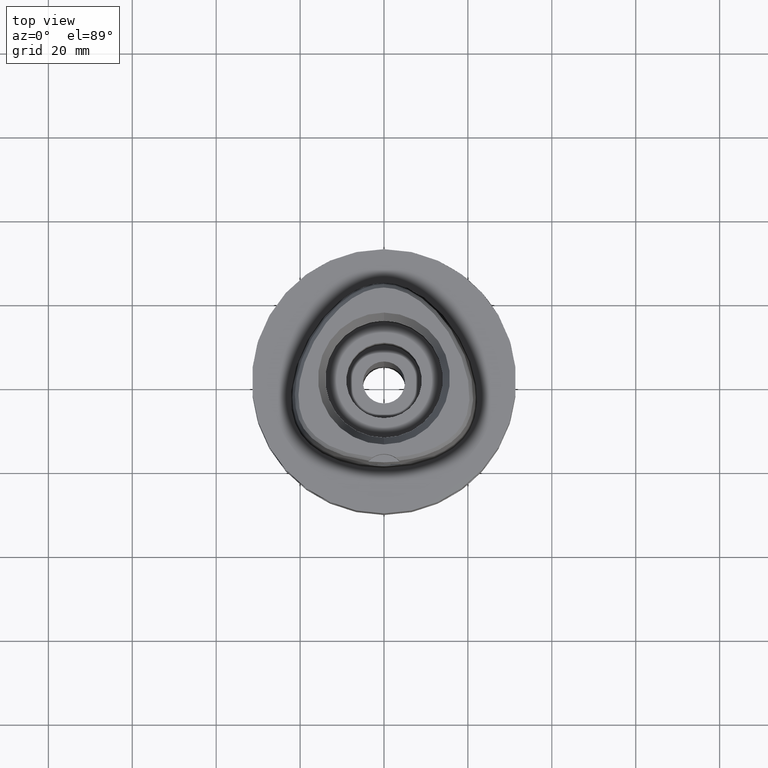
[diagram: clean part render]
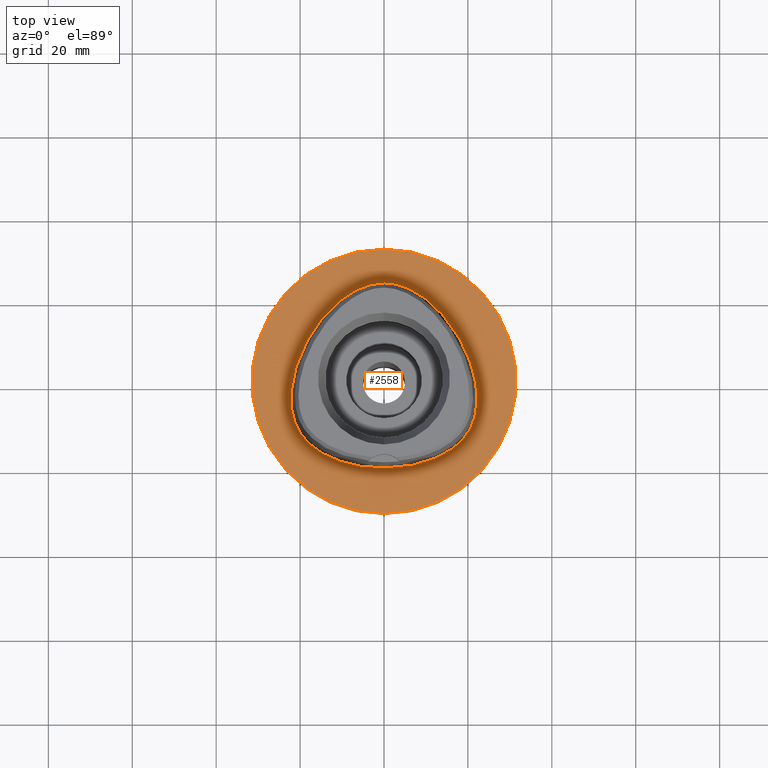
[diagram: same view with one face highlighted and labeled with its STEP entity id]
A machine part, top view. The second image highlights one B-rep face of the part: STEP entity #2558.
In plain terms, the highlighted planar face has unit normal (0, 0, -1).
Its self-contained STEP definition (entity closure, byte-faithful):
#286=CARTESIAN_POINT('',(0.E0,1.293227019900E-14,0.E0));
#287=DIRECTION('',(0.E0,0.E0,-1.E0));
#288=DIRECTION('',(0.E0,-1.E0,0.E0));
#289=AXIS2_PLACEMENT_3D('',#286,#287,#288);
#294=CARTESIAN_POINT('',(0.E0,1.293227019900E-14,0.E0));
#295=DIRECTION('',(0.E0,0.E0,-1.E0));
#296=DIRECTION('',(0.E0,1.E0,0.E0));
#297=AXIS2_PLACEMENT_3D('',#294,#295,#296);
#302=CARTESIAN_POINT('',(-8.195366136956E-12,-2.0675E1,5.699144859742E-14));
#303=CARTESIAN_POINT('',(9.424410730313E-1,-2.0675E1,5.699144859742E-14));
#304=CARTESIAN_POINT('',(2.793498385144E0,-2.060121279113E1,
-2.644982334311E-14));
#305=CARTESIAN_POINT('',(5.508317392498E0,-2.027760784305E1,0.E0));
#306=CARTESIAN_POINT('',(8.042283048290E0,-1.976535038161E1,0.E0));
#307=CARTESIAN_POINT('',(1.034769246011E1,-1.909901168002E1,0.E0));
#308=CARTESIAN_POINT('',(1.239690028726E1,-1.831440633134E1,0.E0));
#309=CARTESIAN_POINT('',(1.418724497299E1,-1.744418331143E1,0.E0));
#310=CARTESIAN_POINT('',(1.573252799017E1,-1.651362362014E1,0.E0));
#311=CARTESIAN_POINT('',(1.705345026612E1,-1.554124778281E1,0.E0));
#312=CARTESIAN_POINT('',(1.817409574332E1,-1.453882758759E1,0.E0));
#313=CARTESIAN_POINT('',(1.911939204581E1,-1.350918186793E1,0.E0));
#314=CARTESIAN_POINT('',(1.990164630943E1,-1.246448486181E1,0.E0));
#315=CARTESIAN_POINT('',(2.055241369892E1,-1.138152228921E1,0.E0));
#316=CARTESIAN_POINT('',(2.109859169268E1,-1.021515076491E1,0.E0));
#317=CARTESIAN_POINT('',(2.155059010529E1,-8.927115672096E0,0.E0));
#318=CARTESIAN_POINT('',(2.189661581262E1,-7.503943940441E0,0.E0));
#319=CARTESIAN_POINT('',(2.212243449064E1,-5.927939707532E0,0.E0));
#320=CARTESIAN_POINT('',(2.220771296201E1,-4.182993250552E0,0.E0));
#321=CARTESIAN_POINT('',(2.212727169809E1,-2.257530056409E0,0.E0));
#322=CARTESIAN_POINT('',(2.185268526932E1,-1.488562286611E-1,0.E0));
#323=CARTESIAN_POINT('',(2.135583121463E1,2.131060266597E0,0.E0));
#324=CARTESIAN_POINT('',(2.061498960730E1,4.548922353838E0,0.E0));
#325=CARTESIAN_POINT('',(1.962183629035E1,7.048070491889E0,0.E0));
#326=CARTESIAN_POINT('',(1.838960266974E1,9.548018977044E0,0.E0));
#327=CARTESIAN_POINT('',(1.695186415591E1,1.196227064422E1,0.E0));
#328=CARTESIAN_POINT('',(1.535543809526E1,1.421580229752E1,0.E0));
#329=CARTESIAN_POINT('',(1.366191099290E1,1.624115744859E1,0.E0));
#330=CARTESIAN_POINT('',(1.193262208639E1,1.799662913011E1,0.E0));
#331=CARTESIAN_POINT('',(1.021592161028E1,1.947049924403E1,0.E0));
#332=CARTESIAN_POINT('',(8.546574879406E0,2.067109792507E1,0.E0));
#333=CARTESIAN_POINT('',(6.944082352105E0,2.162048497503E1,0.E0));
#334=CARTESIAN_POINT('',(5.416515327443E0,2.234578935846E1,0.E0));
#335=CARTESIAN_POINT('',(3.964005430014E0,2.287416795835E1,0.E0));
#336=CARTESIAN_POINT('',(2.581016174533E0,2.322975955653E1,0.E0));
#337=CARTESIAN_POINT('',(1.261697128686E0,2.343214818692E1,
-2.511015696599E-14));
#338=CARTESIAN_POINT('',(4.146040462738E-1,2.347499999999E1,
5.410486873340E-14));
#339=CARTESIAN_POINT('',(4.711982846279E-11,2.347499999999E1,
5.410486873340E-14));
#344=CARTESIAN_POINT('',(4.711982846279E-11,2.347499999999E1,
5.410486873340E-14));
#345=CARTESIAN_POINT('',(-4.147333787676E-1,2.347499999999E1,
5.410486873340E-14));
#346=CARTESIAN_POINT('',(-1.262061304315E0,2.343212491620E1,
-2.511015696599E-14));
#347=CARTESIAN_POINT('',(-2.581769782500E0,2.322961198610E1,0.E0));
#348=CARTESIAN_POINT('',(-3.964859593146E0,2.287390761013E1,0.E0));
#349=CARTESIAN_POINT('',(-5.417671751090E0,2.234531743252E1,0.E0));
#350=CARTESIAN_POINT('',(-6.945651834071E0,2.161966722024E1,0.E0));
#351=CARTESIAN_POINT('',(-8.548724433836E0,2.066971262547E1,0.E0));
#352=CARTESIAN_POINT('',(-1.021859295896E1,1.946842051983E1,0.E0));
#353=CARTESIAN_POINT('',(-1.193583321534E1,1.799365402565E1,0.E0));
#354=CARTESIAN_POINT('',(-1.366549061428E1,1.623723928323E1,0.E0));
#355=CARTESIAN_POINT('',(-1.535921975264E1,1.421090681840E1,0.E0));
#356=CARTESIAN_POINT('',(-1.695549054293E1,1.195672029967E1,0.E0));
#357=CARTESIAN_POINT('',(-1.839312514584E1,9.541556583966E0,0.E0));
#358=CARTESIAN_POINT('',(-1.962477443965E1,7.041445423757E0,0.E0));
#359=CARTESIAN_POINT('',(-2.061722538073E1,4.542537514916E0,0.E0));
#360=CARTESIAN_POINT('',(-2.135736495004E1,2.125169159994E0,0.E0));
#361=CARTESIAN_POINT('',(-2.185357700622E1,-1.540800060985E-1,0.E0));
#362=CARTESIAN_POINT('',(-2.212763219408E1,-2.261832899481E0,0.E0));
#363=CARTESIAN_POINT('',(-2.220769739726E1,-4.186930962005E0,0.E0));
#364=CARTESIAN_POINT('',(-2.212210274614E1,-5.931430680722E0,0.E0));
#365=CARTESIAN_POINT('',(-2.189597396233E1,-7.507202810274E0,0.E0));
#366=CARTESIAN_POINT('',(-2.154975091639E1,-8.930182834388E0,0.E0));
#367=CARTESIAN_POINT('',(-2.109662751725E1,-1.021987608371E1,0.E0));
#368=CARTESIAN_POINT('',(-2.055220444613E1,-1.138143091282E1,0.E0));
#369=CARTESIAN_POINT('',(-1.990432175874E1,-1.246036145038E1,0.E0));
#370=CARTESIAN_POINT('',(-1.912277964038E1,-1.350515676521E1,0.E0));
#371=CARTESIAN_POINT('',(-1.817748747003E1,-1.453547810699E1,0.E0));
#372=CARTESIAN_POINT('',(-1.705777333754E1,-1.553773918373E1,0.E0));
#373=CARTESIAN_POINT('',(-1.573691961108E1,-1.651071747174E1,0.E0));
#374=CARTESIAN_POINT('',(-1.419194494707E1,-1.744165769699E1,0.E0));
#375=CARTESIAN_POINT('',(-1.240111964403E1,-1.831261218826E1,0.E0));
#376=CARTESIAN_POINT('',(-1.035150707615E1,-1.909776684547E1,0.E0));
#377=CARTESIAN_POINT('',(-8.045051044207E0,-1.976470908744E1,0.E0));
#378=CARTESIAN_POINT('',(-5.510192157268E0,-2.027733547542E1,0.E0));
#379=CARTESIAN_POINT('',(-2.794336757925E0,-2.060117308789E1,
-2.644982334311E-14));
#380=CARTESIAN_POINT('',(-9.427120949476E-1,-2.0675E1,5.699144859742E-14));
#381=CARTESIAN_POINT('',(-8.195366136956E-12,-2.0675E1,5.699144859742E-14));
#1682=VERTEX_POINT('',#344);
#1683=VERTEX_POINT('',#381);
#1688=CARTESIAN_POINT('',(0.E0,-3.15E1,0.E0));
#1689=CARTESIAN_POINT('',(0.E0,3.15E1,0.E0));
#1690=VERTEX_POINT('',#1688);
#1691=VERTEX_POINT('',#1689);
#2542=CARTESIAN_POINT('',(0.E0,1.224646799147E-14,0.E0));
#2543=DIRECTION('',(0.E0,0.E0,-1.E0));
#2544=DIRECTION('',(0.E0,-1.E0,0.E0));
#2545=AXIS2_PLACEMENT_3D('',#2542,#2543,#2544);
#2546=PLANE('',#2545);
#2548=ORIENTED_EDGE('',*,*,#2547,.T.);
#2550=ORIENTED_EDGE('',*,*,#2549,.T.);
#2551=EDGE_LOOP('',(#2548,#2550));
#2552=FACE_OUTER_BOUND('',#2551,.F.);
#2554=ORIENTED_EDGE('',*,*,#2553,.T.);
#2555=ORIENTED_EDGE('',*,*,#2525,.T.);
#2556=EDGE_LOOP('',(#2554,#2555));
#2557=FACE_BOUND('',#2556,.F.);
#290=CIRCLE('',#289,3.15E1);
#298=CIRCLE('',#297,3.15E1);
#340=B_SPLINE_CURVE_WITH_KNOTS('',3,(#302,#303,#304,#305,#306,#307,#308,#309,
#310,#311,#312,#313,#314,#315,#316,#317,#318,#319,#320,#321,#322,#323,#324,#325,
#326,#327,#328,#329,#330,#331,#332,#333,#334,#335,#336,#337,#338,#339),
.UNSPECIFIED.,.F.,.F.,(4,1,1,1,1,1,1,1,1,1,1,1,1,1,1,1,1,1,1,1,1,1,1,1,1,1,1,1,
1,1,1,1,1,1,1,4),(0.E0,2.857142857143E-2,5.714285714286E-2,8.571428571429E-2,
1.142857142857E-1,1.428571428571E-1,1.714285714286E-1,2.E-1,2.285714285714E-1,
2.571428571429E-1,2.857142857143E-1,3.142857142857E-1,3.428571428571E-1,
3.714285714286E-1,4.E-1,4.285714285714E-1,4.571428571429E-1,4.857142857143E-1,
5.142857142857E-1,5.428571428571E-1,5.714285714286E-1,6.E-1,6.285714285714E-1,
6.571428571429E-1,6.857142857143E-1,7.142857142857E-1,7.428571428571E-1,
7.714285714286E-1,8.E-1,8.285714285714E-1,8.571428571429E-1,8.857142857143E-1,
9.142857142857E-1,9.428571428571E-1,9.714285714286E-1,1.E0),.UNSPECIFIED.);
#382=B_SPLINE_CURVE_WITH_KNOTS('',3,(#344,#345,#346,#347,#348,#349,#350,#351,
#352,#353,#354,#355,#356,#357,#358,#359,#360,#361,#362,#363,#364,#365,#366,#367,
#368,#369,#370,#371,#372,#373,#374,#375,#376,#377,#378,#379,#380,#381),
.UNSPECIFIED.,.F.,.F.,(4,1,1,1,1,1,1,1,1,1,1,1,1,1,1,1,1,1,1,1,1,1,1,1,1,1,1,1,
1,1,1,1,1,1,1,4),(0.E0,2.857142857143E-2,5.714285714286E-2,8.571428571429E-2,
1.142857142857E-1,1.428571428571E-1,1.714285714286E-1,2.E-1,2.285714285714E-1,
2.571428571429E-1,2.857142857143E-1,3.142857142857E-1,3.428571428571E-1,
3.714285714286E-1,4.E-1,4.285714285714E-1,4.571428571429E-1,4.857142857143E-1,
5.142857142857E-1,5.428571428571E-1,5.714285714286E-1,6.E-1,6.285714285714E-1,
6.571428571429E-1,6.857142857143E-1,7.142857142857E-1,7.428571428571E-1,
7.714285714286E-1,8.E-1,8.285714285714E-1,8.571428571429E-1,8.857142857143E-1,
9.142857142857E-1,9.428571428571E-1,9.714285714286E-1,1.E0),.UNSPECIFIED.);
#2525=EDGE_CURVE('',#1682,#1683,#382,.T.);
#2547=EDGE_CURVE('',#1690,#1691,#290,.T.);
#2549=EDGE_CURVE('',#1691,#1690,#298,.T.);
#2553=EDGE_CURVE('',#1683,#1682,#340,.T.);
#2558=ADVANCED_FACE('',(#2552,#2557),#2546,.F.);